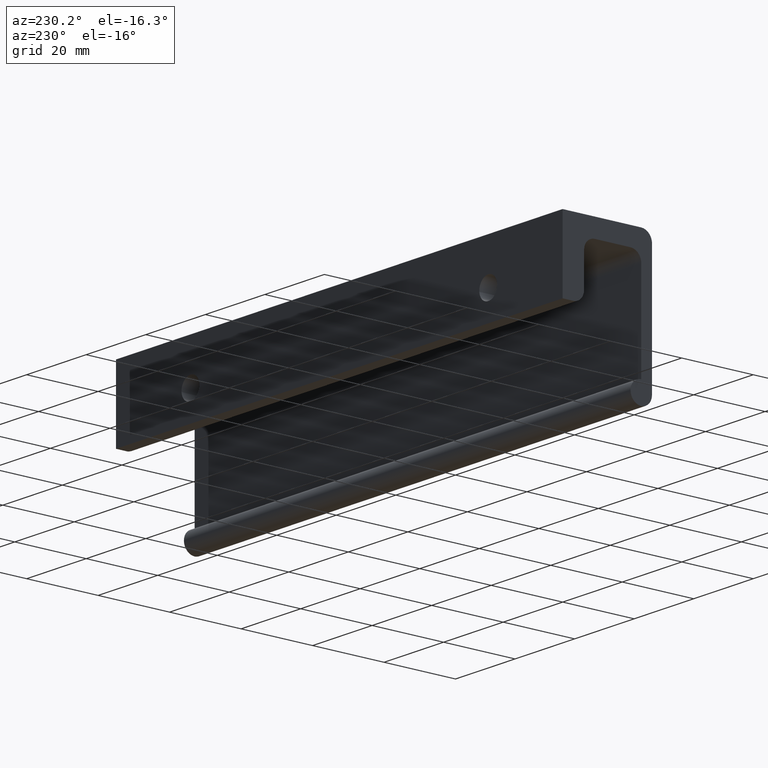
[diagram: clean part render]
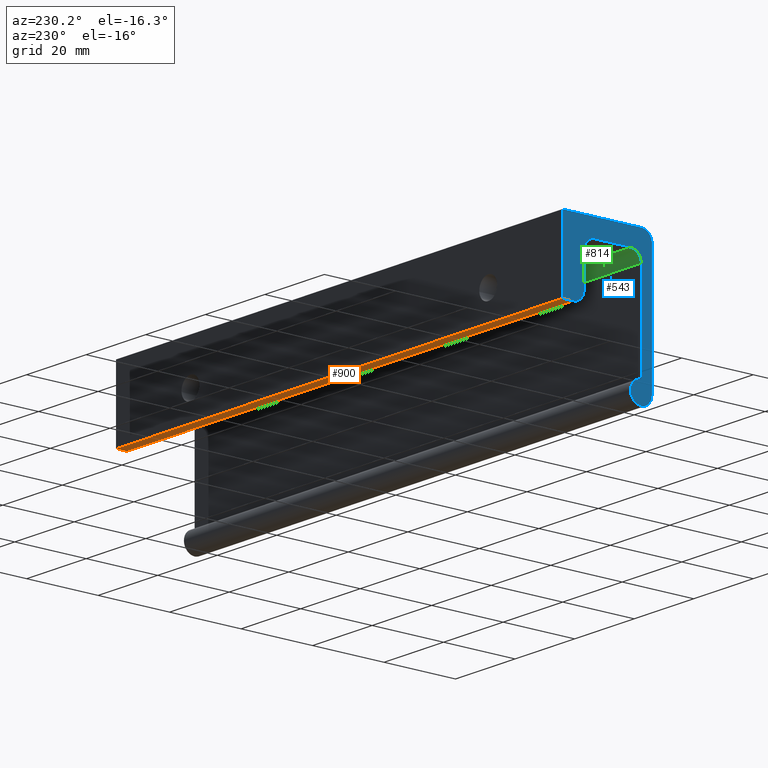
[diagram: same view with three faces highlighted in distinct colors, each labeled with its STEP entity id]
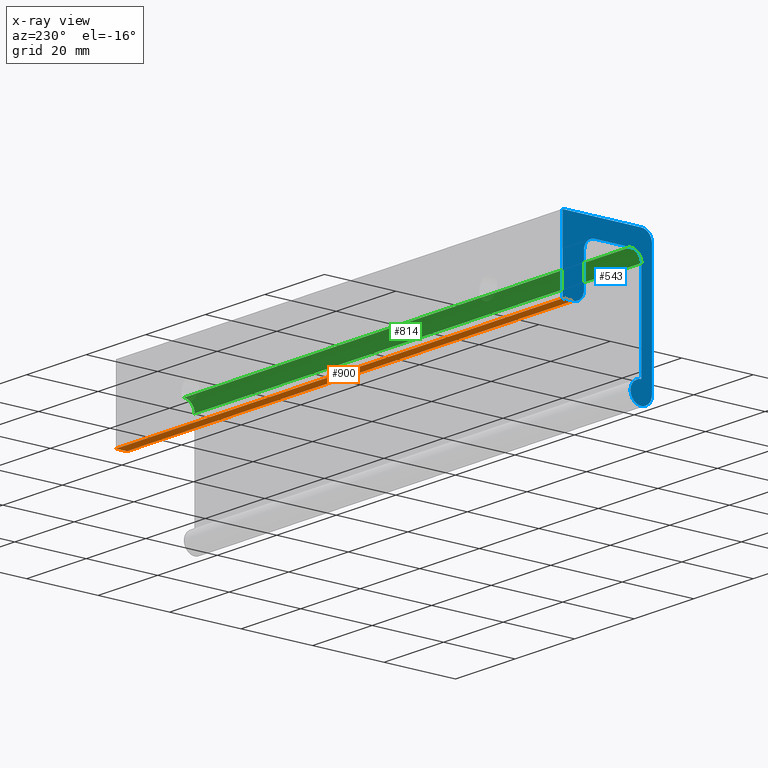
[diagram: x-ray of the same camera — body ghosted, the three highlighted faces saturated]
A machine part, auxiliary view with three faces highlighted in distinct colors.
The next image is the same camera in x-ray (body ghosted, the three faces saturated) — at least one of them is partly hidden behind the body in this view.
Their STEP definitions:

[orange] entity #900 — the highlighted face is a freeform B-spline surface patch.
#415=CARTESIAN_POINT('',(0.0,0.0,-20.0));
#416=VERTEX_POINT('',#415);
#422=CARTESIAN_POINT('',(0.0,-3.0,-20.0));
#423=VERTEX_POINT('',#422);
#424=CARTESIAN_POINT('',(0.0,0.0,-20.0));
#425=CARTESIAN_POINT('',(0.0,-3.0,-20.0));
#426=QUASI_UNIFORM_CURVE('',1,(#424,#425),.UNSPECIFIED.,.F.,.U.);
#427=EDGE_CURVE('',#416,#423,#426,.T.);
#551=CARTESIAN_POINT('',(150.0,0.0,-20.0));
#552=VERTEX_POINT('',#551);
#657=CARTESIAN_POINT('',(150.0,-3.0,-20.0));
#658=VERTEX_POINT('',#657);
#672=CARTESIAN_POINT('',(150.0,0.0,-20.0));
#673=CARTESIAN_POINT('',(150.0,-3.0,-20.0));
#674=QUASI_UNIFORM_CURVE('',1,(#672,#673),.UNSPECIFIED.,.F.,.U.);
#675=EDGE_CURVE('',#552,#658,#674,.T.);
#871=CARTESIAN_POINT('',(150.0,-3.0,-20.0));
#872=CARTESIAN_POINT('',(0.0,-3.0,-20.0));
#873=QUASI_UNIFORM_CURVE('',1,(#871,#872),.UNSPECIFIED.,.F.,.U.);
#874=EDGE_CURVE('',#658,#423,#873,.T.);
#885=CARTESIAN_POINT('',(157.492499709270900,-3.149849994185419,-20.0));
#886=CARTESIAN_POINT('',(-7.492503732584416,-3.149849994185419,-20.0));
#887=CARTESIAN_POINT('',(157.492499709270900,0.149850074651688,-20.0));
#888=CARTESIAN_POINT('',(-7.492503732584416,0.149850074651688,-20.0));
#889=B_SPLINE_SURFACE_WITH_KNOTS('',1,1,((#885,#887),(#886,#888)),.UNSPECIFIED.,.F.,.F.,.U.,(2,2),(2,2),(0.0,164.985003441855300),(0.0,3.299700068837107),.UNSPECIFIED.);
#890=ORIENTED_EDGE('',*,*,#427,.F.);
#891=CARTESIAN_POINT('',(150.0,0.0,-20.0));
#892=CARTESIAN_POINT('',(0.0,0.0,-20.0));
#893=QUASI_UNIFORM_CURVE('',1,(#891,#892),.UNSPECIFIED.,.F.,.U.);
#894=EDGE_CURVE('',#552,#416,#893,.T.);
#895=ORIENTED_EDGE('',*,*,#894,.F.);
#896=ORIENTED_EDGE('',*,*,#675,.T.);
#897=ORIENTED_EDGE('',*,*,#874,.T.);
#898=EDGE_LOOP('',(#890,#895,#896,#897));
#899=FACE_OUTER_BOUND('',#898,.T.);
#900=ADVANCED_FACE('',(#899),#889,.T.);

[blue] entity #543 — the highlighted face is a freeform B-spline surface patch.
#408=CARTESIAN_POINT('',(0.0,-26.248749951545150,1.997999830122131));
#409=CARTESIAN_POINT('',(0.0,1.248750622097401,1.997999830122131));
#410=CARTESIAN_POINT('',(0.0,-26.248749951545150,-41.997999053548106));
#411=CARTESIAN_POINT('',(0.0,1.248750622097401,-41.997999053548106));
#412=B_SPLINE_SURFACE_WITH_KNOTS('',1,1,((#408,#410),(#409,#411)),.UNSPECIFIED.,.F.,.F.,.U.,(2,2),(2,2),(0.0,27.497500573642551),(0.0,43.995998883670239),.UNSPECIFIED.);
#413=CARTESIAN_POINT('',(0.0,0.0,0.0));
#414=VERTEX_POINT('',#413);
#415=CARTESIAN_POINT('',(0.0,0.0,-20.0));
#416=VERTEX_POINT('',#415);
#417=CARTESIAN_POINT('',(0.0,0.0,0.0));
#418=CARTESIAN_POINT('',(0.0,0.0,-20.0));
#419=QUASI_UNIFORM_CURVE('',1,(#417,#418),.UNSPECIFIED.,.F.,.U.);
#420=EDGE_CURVE('',#414,#416,#419,.T.);
#421=ORIENTED_EDGE('',*,*,#420,.T.);
#422=CARTESIAN_POINT('',(0.0,-3.0,-20.0));
#423=VERTEX_POINT('',#422);
#424=CARTESIAN_POINT('',(0.0,0.0,-20.0));
#425=CARTESIAN_POINT('',(0.0,-3.0,-20.0));
#426=QUASI_UNIFORM_CURVE('',1,(#424,#425),.UNSPECIFIED.,.F.,.U.);
#427=EDGE_CURVE('',#416,#423,#426,.T.);
#428=ORIENTED_EDGE('',*,*,#427,.T.);
#429=CARTESIAN_POINT('',(0.0,-6.0,-17.0));
#430=VERTEX_POINT('',#429);
#431=CARTESIAN_POINT('',(0.0,-6.0,-17.0));
#432=CARTESIAN_POINT('',(0.0,-6.0,-19.999999999999996));
#433=CARTESIAN_POINT('',(0.0,-3.0,-20.0));
#441=(BOUNDED_CURVE()B_SPLINE_CURVE(2,(#431,#432,#433),.UNSPECIFIED.,.F.,.U.)CURVE()GEOMETRIC_REPRESENTATION_ITEM()QUASI_UNIFORM_CURVE()RATIONAL_B_SPLINE_CURVE((1.0,0.707106781186548,1.0))REPRESENTATION_ITEM(''));
#442=EDGE_CURVE('',#430,#423,#441,.T.);
#443=ORIENTED_EDGE('',*,*,#442,.F.);
#444=CARTESIAN_POINT('',(0.0,-6.0,-8.0));
#445=VERTEX_POINT('',#444);
#446=CARTESIAN_POINT('',(0.0,-6.0,-17.0));
#447=CARTESIAN_POINT('',(0.0,-6.0,-8.0));
#448=QUASI_UNIFORM_CURVE('',1,(#446,#447),.UNSPECIFIED.,.F.,.U.);
#449=EDGE_CURVE('',#430,#445,#448,.T.);
#450=ORIENTED_EDGE('',*,*,#449,.T.);
#451=CARTESIAN_POINT('',(0.0,-9.0,-5.0));
#452=VERTEX_POINT('',#451);
#453=CARTESIAN_POINT('',(0.0,-5.999999999999999,-8.0));
#454=CARTESIAN_POINT('',(0.0,-5.999999999999999,-5.000000000000001));
#455=CARTESIAN_POINT('',(0.0,-9.0,-5.0));
#463=(BOUNDED_CURVE()B_SPLINE_CURVE(2,(#453,#454,#455),.UNSPECIFIED.,.F.,.U.)CURVE()GEOMETRIC_REPRESENTATION_ITEM()QUASI_UNIFORM_CURVE()RATIONAL_B_SPLINE_CURVE((1.0,0.707106781186548,1.0))REPRESENTATION_ITEM(''));
#464=EDGE_CURVE('',#445,#452,#463,.T.);
#465=ORIENTED_EDGE('',*,*,#464,.T.);
#466=CARTESIAN_POINT('',(0.0,-19.0,-5.0));
#467=VERTEX_POINT('',#466);
#468=CARTESIAN_POINT('',(0.0,-9.0,-5.0));
#469=CARTESIAN_POINT('',(0.0,-19.0,-5.0));
#470=QUASI_UNIFORM_CURVE('',1,(#468,#469),.UNSPECIFIED.,.F.,.U.);
#471=EDGE_CURVE('',#452,#467,#470,.T.);
#472=ORIENTED_EDGE('',*,*,#471,.T.);
#473=CARTESIAN_POINT('',(0.0,-22.0,-8.0));
#474=VERTEX_POINT('',#473);
#475=CARTESIAN_POINT('',(0.0,-19.0,-5.0));
#476=CARTESIAN_POINT('',(0.0,-22.000000000000007,-5.000000000000001));
#477=CARTESIAN_POINT('',(0.0,-22.0,-8.0));
#485=(BOUNDED_CURVE()B_SPLINE_CURVE(2,(#475,#476,#477),.UNSPECIFIED.,.F.,.U.)CURVE()GEOMETRIC_REPRESENTATION_ITEM()QUASI_UNIFORM_CURVE()RATIONAL_B_SPLINE_CURVE((1.0,0.707106781186548,1.0))REPRESENTATION_ITEM(''));
#486=EDGE_CURVE('',#467,#474,#485,.T.);
#487=ORIENTED_EDGE('',*,*,#486,.T.);
#488=CARTESIAN_POINT('',(0.0,-22.0,-34.0));
#489=VERTEX_POINT('',#488);
#490=CARTESIAN_POINT('',(0.0,-22.0,-8.0));
#491=CARTESIAN_POINT('',(0.0,-22.0,-34.0));
#492=QUASI_UNIFORM_CURVE('',1,(#490,#491),.UNSPECIFIED.,.F.,.U.);
#493=EDGE_CURVE('',#474,#489,#492,.T.);
#494=ORIENTED_EDGE('',*,*,#493,.T.);
#495=CARTESIAN_POINT('',(0.0,-25.0,-37.0));
#496=VERTEX_POINT('',#495);
#497=CARTESIAN_POINT('',(0.0,-25.0,-37.0));
#498=CARTESIAN_POINT('',(0.0,-25.0,-39.999999999999993));
#499=CARTESIAN_POINT('',(0.0,-22.0,-40.0));
#500=CARTESIAN_POINT('',(0.0,-18.999999999999993,-39.999999999999993));
#501=CARTESIAN_POINT('',(0.0,-19.0,-37.0));
#502=CARTESIAN_POINT('',(0.0,-18.999999999999993,-33.999999999999993));
#503=CARTESIAN_POINT('',(0.0,-22.0,-33.999999999999993));
#511=(BOUNDED_CURVE()B_SPLINE_CURVE(2,(#497,#498,#499,#500,#501,#502,#503),.UNSPECIFIED.,.F.,.U.)B_SPLINE_CURVE_WITH_KNOTS((3,2,2,3),(0.0,0.333333333333333,0.666666666666667,1.0),.UNSPECIFIED.)CURVE()GEOMETRIC_REPRESENTATION_ITEM()RATIONAL_B_SPLINE_CURVE((1.0,0.707106781186548,1.0,0.707106781186548,1.0,0.707106781186548,1.0))REPRESENTATION_ITEM(''));
#512=EDGE_CURVE('',#496,#489,#511,.T.);
#513=ORIENTED_EDGE('',*,*,#512,.F.);
#514=CARTESIAN_POINT('',(0.0,-25.0,-3.0));
#515=VERTEX_POINT('',#514);
#516=CARTESIAN_POINT('',(0.0,-25.0,-37.0));
#517=CARTESIAN_POINT('',(0.0,-25.0,-3.0));
#518=QUASI_UNIFORM_CURVE('',1,(#516,#517),.UNSPECIFIED.,.F.,.U.);
#519=EDGE_CURVE('',#496,#515,#518,.T.);
#520=ORIENTED_EDGE('',*,*,#519,.T.);
#521=CARTESIAN_POINT('',(0.0,-22.0,0.0));
#522=VERTEX_POINT('',#521);
#523=CARTESIAN_POINT('',(0.0,-22.0,0.0));
#524=CARTESIAN_POINT('',(0.0,-25.0,0.0));
#525=CARTESIAN_POINT('',(0.0,-25.0,-3.0));
#533=(BOUNDED_CURVE()B_SPLINE_CURVE(2,(#523,#524,#525),.UNSPECIFIED.,.F.,.U.)CURVE()GEOMETRIC_REPRESENTATION_ITEM()QUASI_UNIFORM_CURVE()RATIONAL_B_SPLINE_CURVE((1.0,0.707106781186548,1.0))REPRESENTATION_ITEM(''));
#534=EDGE_CURVE('',#522,#515,#533,.T.);
#535=ORIENTED_EDGE('',*,*,#534,.F.);
#536=CARTESIAN_POINT('',(0.0,-22.0,0.0));
#537=CARTESIAN_POINT('',(0.0,0.0,0.0));
#538=QUASI_UNIFORM_CURVE('',1,(#536,#537),.UNSPECIFIED.,.F.,.U.);
#539=EDGE_CURVE('',#522,#414,#538,.T.);
#540=ORIENTED_EDGE('',*,*,#539,.T.);
#541=EDGE_LOOP('',(#421,#428,#443,#450,#465,#472,#487,#494,#513,#520,#535,#540));
#542=FACE_OUTER_BOUND('',#541,.T.);
#543=ADVANCED_FACE('',(#542),#412,.T.);

[green] entity #814 — the highlighted face is a freeform B-spline surface patch.
#466=CARTESIAN_POINT('',(0.0,-19.0,-5.0));
#467=VERTEX_POINT('',#466);
#473=CARTESIAN_POINT('',(0.0,-22.0,-8.0));
#474=VERTEX_POINT('',#473);
#475=CARTESIAN_POINT('',(0.0,-19.0,-5.0));
#476=CARTESIAN_POINT('',(0.0,-22.000000000000007,-5.000000000000001));
#477=CARTESIAN_POINT('',(0.0,-22.0,-8.0));
#485=(BOUNDED_CURVE()B_SPLINE_CURVE(2,(#475,#476,#477),.UNSPECIFIED.,.F.,.U.)CURVE()GEOMETRIC_REPRESENTATION_ITEM()QUASI_UNIFORM_CURVE()RATIONAL_B_SPLINE_CURVE((1.0,0.707106781186548,1.0))REPRESENTATION_ITEM(''));
#486=EDGE_CURVE('',#467,#474,#485,.T.);
#606=CARTESIAN_POINT('',(150.0,-22.0,-8.0));
#607=VERTEX_POINT('',#606);
#613=CARTESIAN_POINT('',(150.0,-19.0,-5.0));
#614=VERTEX_POINT('',#613);
#615=CARTESIAN_POINT('',(150.0,-19.0,-5.0));
#616=CARTESIAN_POINT('',(149.999999999999940,-22.000000000000007,-5.000000000000001));
#617=CARTESIAN_POINT('',(150.0,-22.0,-8.0));
#625=(BOUNDED_CURVE()B_SPLINE_CURVE(2,(#615,#616,#617),.UNSPECIFIED.,.F.,.U.)CURVE()GEOMETRIC_REPRESENTATION_ITEM()QUASI_UNIFORM_CURVE()RATIONAL_B_SPLINE_CURVE((1.0,0.707106781186548,1.0))REPRESENTATION_ITEM(''));
#626=EDGE_CURVE('',#614,#607,#625,.T.);
#780=CARTESIAN_POINT('',(150.0,-22.0,-8.0));
#781=CARTESIAN_POINT('',(0.0,-22.0,-8.0));
#782=QUASI_UNIFORM_CURVE('',1,(#780,#781),.UNSPECIFIED.,.F.,.U.);
#783=EDGE_CURVE('',#607,#474,#782,.T.);
#790=CARTESIAN_POINT('',(153.750000000000000,-18.973820393504880,-5.000114230807487));
#791=CARTESIAN_POINT('',(-3.843750000000000,-18.973820393504880,-5.000114230807487));
#792=CARTESIAN_POINT('',(153.750000000000030,-22.190804026035256,-4.972040039961358));
#793=CARTESIAN_POINT('',(-3.843750000000000,-22.190804026035256,-4.972040039961358));
#794=CARTESIAN_POINT('',(153.750000000000000,-21.994404395265601,-8.183145618604566));
#795=CARTESIAN_POINT('',(-3.843750000000000,-21.994404395265601,-8.183145618604566));
#803=(BOUNDED_SURFACE()B_SPLINE_SURFACE(1,2,((#790,#792,#794),(#791,#793,#795)),.UNSPECIFIED.,.F.,.F.,.U.)B_SPLINE_SURFACE_WITH_KNOTS((2,2),(3,3),(0.0,157.593750000000000),(0.0,5.217748499531194),.UNSPECIFIED.)GEOMETRIC_REPRESENTATION_ITEM()RATIONAL_B_SPLINE_SURFACE(((1.0,0.681998360062499,1.0),(1.0,0.681998360062499,1.0)))REPRESENTATION_ITEM('')SURFACE());
#804=ORIENTED_EDGE('',*,*,#486,.F.);
#805=CARTESIAN_POINT('',(150.0,-19.0,-5.0));
#806=CARTESIAN_POINT('',(0.0,-19.0,-5.0));
#807=QUASI_UNIFORM_CURVE('',1,(#805,#806),.UNSPECIFIED.,.F.,.U.);
#808=EDGE_CURVE('',#614,#467,#807,.T.);
#809=ORIENTED_EDGE('',*,*,#808,.F.);
#810=ORIENTED_EDGE('',*,*,#626,.T.);
#811=ORIENTED_EDGE('',*,*,#783,.T.);
#812=EDGE_LOOP('',(#804,#809,#810,#811));
#813=FACE_OUTER_BOUND('',#812,.T.);
#814=ADVANCED_FACE('',(#813),#803,.F.);